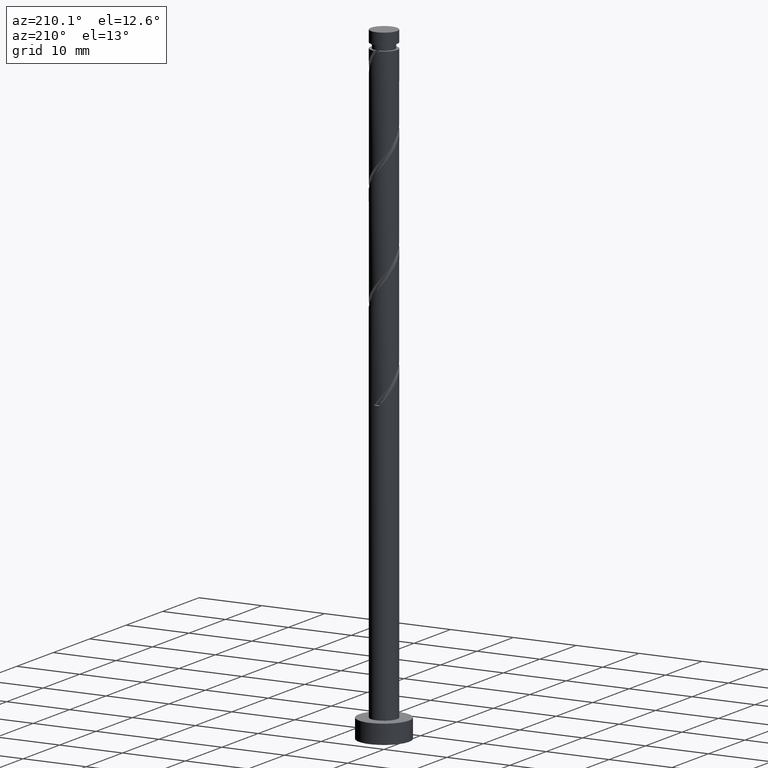
[diagram: clean part render]
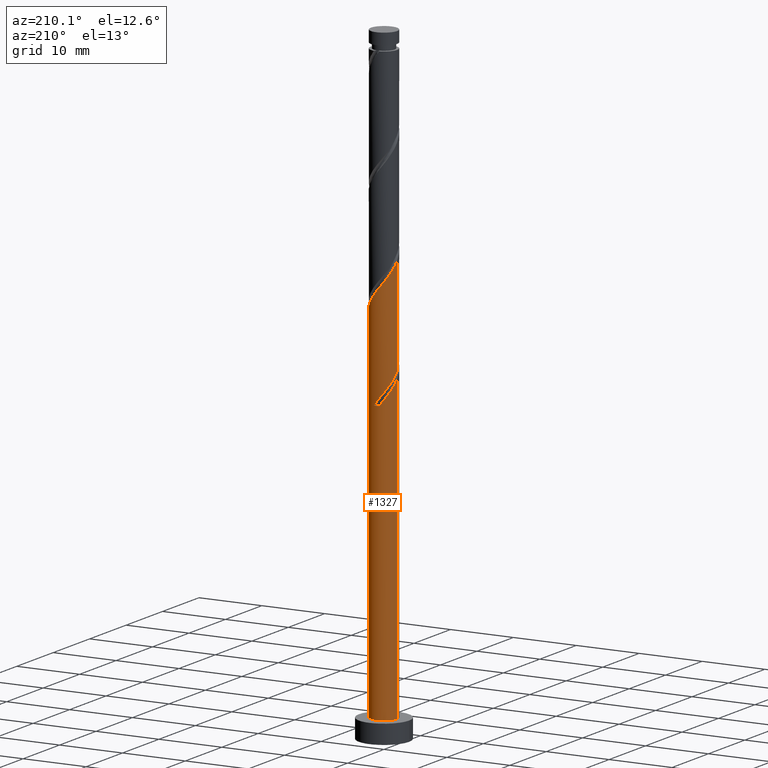
[diagram: same view with one face highlighted and labeled with its STEP entity id]
A machine part, auxiliary view. The second image highlights one B-rep face of the part: STEP entity #1327.
In plain terms, the highlighted cylindrical surface (edge-blend (fillet) strip) has radius 2.1 mm, axis along (-0, -0, -1).
Its self-contained STEP definition (entity closure, byte-faithful):
#27 = VERTEX_POINT ( 'NONE', #1193 ) ;
#32 = EDGE_CURVE ( 'NONE', #27, #558, #1017, .T. ) ;
#37 = VERTEX_POINT ( 'NONE', #1134 ) ;
#42 = AXIS2_PLACEMENT_3D ( 'NONE', #1086, #1323, #1357 ) ;
#43 = CARTESIAN_POINT ( 'NONE',  ( -1.096570042982212945, 1.790959000321894701, 48.26513319744002217 ) ) ;
#44 = CARTESIAN_POINT ( 'NONE',  ( -1.818587429723140136, 1.113486403440832717, 50.57994801225483883 ) ) ;
#56 = CARTESIAN_POINT ( 'NONE',  ( 1.328078408668831534, 1.668328490022961130, 61.69105912336593178 ) ) ;
#74 = CARTESIAN_POINT ( 'NONE',  ( -1.412364436081622765, 1.597604115507490041, 48.72809616040300540 ) ) ;
#83 = CARTESIAN_POINT ( 'NONE',  ( -1.096570042982212945, 1.790959000321894701, 64.93179986410669358 ) ) ;
#111 = CARTESIAN_POINT ( 'NONE',  ( 0.000000000000000000, 0.000000000000000000, 100.0000000000000000 ) ) ;
#112 = CARTESIAN_POINT ( 'NONE',  ( 2.100000000000000089, 2.571758278209441464E-16, 3.000000000000000000 ) ) ;
#113 = CARTESIAN_POINT ( 'NONE',  ( -0.7807756498828021252, 1.984313885136300248, 64.46883690114373167 ) ) ;
#115 = AXIS2_PLACEMENT_3D ( 'NONE', #111, #577, #145 ) ;
#118 = ORIENTED_EDGE ( 'NONE', *, *, #430, .F. ) ;
#145 = DIRECTION ( 'NONE',  ( -1.000000000000000000, 0.000000000000000000, 0.000000000000000000 ) ) ;
#162 = CARTESIAN_POINT ( 'NONE',  ( -0.7807756498828021252, 1.984313885136300248, 47.80217023447706026 ) ) ;
#171 = CARTESIAN_POINT ( 'NONE',  ( -1.573332919195984614, 1.390907446731896036, 50.11698504929187692 ) ) ;
#176 = CARTESIAN_POINT ( 'NONE',  ( -1.873601227009902059, 1.018199711422872467, 49.65402208632891501 ) ) ;
#178 = EDGE_LOOP ( 'NONE', ( #1052, #1243, #1413, #532, #1030, #1184, #1483, #118 ) ) ;
#201 = CARTESIAN_POINT ( 'NONE',  ( -0.4178947235847802477, 2.058000000000002938, 64.00587393818075554 ) ) ;
#253 = VERTEX_POINT ( 'NONE', #956 ) ;
#261 = VERTEX_POINT ( 'NONE', #941 ) ;
#281 = CIRCLE ( 'NONE', #743, 2.100000000000000089 ) ;
#285 = CARTESIAN_POINT ( 'NONE',  ( -2.100000000000002753, 0.3424141808229606565, 50.54509953749303008 ) ) ;
#286 = CARTESIAN_POINT ( 'NONE',  ( -1.002730969924035209, 1.845137014412534748, 49.19105912336595310 ) ) ;
#302 = CARTESIAN_POINT ( 'NONE',  ( -0.3111848669462412009, 2.076815826832907330, 48.26513319744002217 ) ) ;
#318 = DIRECTION ( 'NONE',  ( -0.000000000000000000, -0.000000000000000000, -1.000000000000000000 ) ) ;
#327 = LINE ( 'NONE', #554, #1320 ) ;
#336 = CARTESIAN_POINT ( 'NONE',  ( 0.000000000000000000, 0.000000000000000000, 3.000000000000000000 ) ) ;
#359 = VECTOR ( 'NONE', #768, 1000.000000000000000 ) ;
#365 =( BOUNDED_CURVE ( )  B_SPLINE_CURVE ( 2, ( #1100, #162, #43, #74, #523, #176, #1203, #285, #533 ),
 .UNSPECIFIED., .F., .T. ) 
 B_SPLINE_CURVE_WITH_KNOTS ( ( 3, 2, 2, 2, 3 ),
 ( 0.000000000000000000, 0.01388888888888883955, 0.02777777777777779011, 0.04166666666666662966, 0.05452480538552904182 ),
 .UNSPECIFIED. ) 
 CURVE ( )  GEOMETRIC_REPRESENTATION_ITEM ( )  RATIONAL_B_SPLINE_CURVE ( ( 0.9090909090909148338, 0.8952797754656494078, 0.9090909090909148338, 0.8952797754656494078, 0.9090909090909148338, 0.8952797754656494078, 0.9090909090909148338, 0.8963047551055894901, 0.9071930855141270289 ) ) 
 REPRESENTATION_ITEM ( '' )  );
#372 = CARTESIAN_POINT ( 'NONE',  ( 1.573332919195986834, 1.390907446731897590, 61.22809616040297698 ) ) ;
#407 = CARTESIAN_POINT ( 'NONE',  ( -0.6773835311792417713, 2.021945538802111031, 48.72809616040299119 ) ) ;
#410 = EDGE_CURVE ( 'NONE', #37, #261, #365, .T. ) ;
#419 = CARTESIAN_POINT ( 'NONE',  ( 2.099301012906249042, 0.05417801409064245538, 59.37624430855113644 ) ) ;
#430 = EDGE_CURVE ( 'NONE', #558, #253, #1079, .T. ) ;
#505 = CARTESIAN_POINT ( 'NONE',  ( 1.954167698492004890, 0.7689139133677279636, 60.30217023447708158 ) ) ;
#523 = CARTESIAN_POINT ( 'NONE',  ( -1.642982831545762190, 1.307901913465180810, 49.19105912336594599 ) ) ;
#532 = ORIENTED_EDGE ( 'NONE', *, *, #817, .F. ) ;
#533 = CARTESIAN_POINT ( 'NONE',  ( -2.100000000000002309, 1.583530453970730612E-15, 50.97501904985868038 ) ) ;
#554 = CARTESIAN_POINT ( 'NONE',  ( 2.100000000000000089, 2.571758278209441464E-16, 100.0000000000000000 ) ) ;
#558 = VERTEX_POINT ( 'NONE', #1267 ) ;
#564 = EDGE_CURVE ( 'NONE', #582, #1235, #281, .T. ) ;
#565 = CARTESIAN_POINT ( 'NONE',  ( -1.412364436081622765, 1.597604115507490041, 65.39476282706965549 ) ) ;
#577 = DIRECTION ( 'NONE',  ( -0.000000000000000000, -0.000000000000000000, -1.000000000000000000 ) ) ;
#582 = VERTEX_POINT ( 'NONE', #112 ) ;
#598 = CARTESIAN_POINT ( 'NONE',  ( 2.100000000000002753, 0.02709351609724555340, 59.34236975712436646 ) ) ;
#625 = VECTOR ( 'NONE', #1195, 1000.000000000000000 ) ;
#640 = CARTESIAN_POINT ( 'NONE',  ( -2.099301012906246378, 0.05417801409064274681, 51.96883690114371745 ) ) ;
#657 = CARTESIAN_POINT ( 'NONE',  ( 0.05501379728675943881, 2.131686114863702741, 47.80217023447706737 ) ) ;
#683 = CARTESIAN_POINT ( 'NONE',  ( -2.100000000000001421, 0.3424141808229657635, 67.21176620415972991 ) ) ;
#698 = FACE_OUTER_BOUND ( 'NONE', #178, .T. ) ;
#706 = CIRCLE ( 'NONE', #42, 2.100000000000000089 ) ;
#717 = CARTESIAN_POINT ( 'NONE',  ( 2.100000000000002309, -1.609673645427794258E-15, 59.30835238319201608 ) ) ;
#724 = EDGE_CURVE ( 'NONE', #253, #1065, #971, .T. ) ;
#743 = AXIS2_PLACEMENT_3D ( 'NONE', #336, #1140, #799 ) ;
#763 = CARTESIAN_POINT ( 'NONE',  ( 2.089747967260866535, 0.4243414232946234876, 59.83920727151409835 ) ) ;
#768 = DIRECTION ( 'NONE',  ( -0.000000000000000000, -0.000000000000000000, -1.000000000000000000 ) ) ;
#792 = CARTESIAN_POINT ( 'NONE',  ( 0.3111848669462436434, 2.076815826832909551, 63.07994801225481751 ) ) ;
#798 = CARTESIAN_POINT ( 'NONE',  ( 0.4178947235847809694, 2.058000000000000274, 47.33920727151409835 ) ) ;
#799 = DIRECTION ( 'NONE',  ( 1.000000000000000000, 0.000000000000000000, 0.000000000000000000 ) ) ;
#809 = CARTESIAN_POINT ( 'NONE',  ( -1.642982831545762190, 1.307901913465180810, 65.85772579003260319 ) ) ;
#817 = EDGE_CURVE ( 'NONE', #261, #1235, #875, .T. ) ;
#852 = CARTESIAN_POINT ( 'NONE',  ( 1.818587429723142801, 1.113486403440832717, 60.76513319744001507 ) ) ;
#875 = LINE ( 'NONE', #977, #359 ) ;
#900 = CARTESIAN_POINT ( 'NONE',  ( 0.6773835311792442138, 2.021945538802112363, 62.61698504929187692 ) ) ;
#910 = EDGE_CURVE ( 'NONE', #37, #1065, #706, .T. ) ;
#924 = CARTESIAN_POINT ( 'NONE',  ( -1.991227642780767360, 0.6670925532681057923, 66.78365171595852701 ) ) ;
#941 = CARTESIAN_POINT ( 'NONE',  ( -2.100000000000002309, 1.583530453970730612E-15, 50.97501904985868038 ) ) ;
#956 = CARTESIAN_POINT ( 'NONE',  ( -2.100000000000000089, -1.053197141556011725E-15, 52.03672882650285914 ) ) ;
#958 = CARTESIAN_POINT ( 'NONE',  ( -2.100000000000000089, 0.000000000000000000, 3.000000000000000000 ) ) ;
#971 =( BOUNDED_CURVE ( )  B_SPLINE_CURVE ( 2, ( #1315, #1449, #640, #1211, #1111, #44, #171, #1441, #286, #407, #302, #657, #1094 ),
 .UNSPECIFIED., .F., .T. ) 
 B_SPLINE_CURVE_WITH_KNOTS ( ( 3, 2, 2, 2, 2, 2, 3 ),
 ( 0.9295248053855289516, 0.9305555555555555802, 0.9444444444444444198, 0.9583333333333333703, 0.9722222222222222099, 0.9861111111111111605, 1.000000000000000000 ),
 .UNSPECIFIED. ) 
 CURVE ( )  GEOMETRIC_REPRESENTATION_ITEM ( )  RATIONAL_B_SPLINE_CURVE ( ( 0.9071930855141209227, 0.9080659294509686452, 0.9090909090909088386, 0.8952797754656434126, 0.9090909090909088386, 0.8952797754656434126, 0.9090909090909088386, 0.8952797754656434126, 0.9090909090909088386, 0.8952797754656434126, 0.9090909090909088386, 0.8952797754656434126, 0.9090909090909088386 ) ) 
 REPRESENTATION_ITEM ( '' )  );
#977 = CARTESIAN_POINT ( 'NONE',  ( -2.100000000000000089, 0.000000000000000000, 100.0000000000000000 ) ) ;
#1012 = EDGE_CURVE ( 'NONE', #27, #582, #327, .T. ) ;
#1017 =( BOUNDED_CURVE ( )  B_SPLINE_CURVE ( 2, ( #717, #598, #419, #763, #505, #852, #372, #56, #1468, #900, #792, #1359, #201, #113, #83, #565, #809, #1021, #924, #683, #1479 ),
 .UNSPECIFIED., .F., .T. ) 
 B_SPLINE_CURVE_WITH_KNOTS ( ( 3, 2, 2, 2, 2, 2, 2, 2, 2, 2, 3 ),
 ( 0.1795248053855291459, 0.1805555555555555802, 0.1944444444444444198, 0.2083333333333333703, 0.2222222222222222099, 0.2361111111111111605, 0.2500000000000000000, 0.2638888888888888395, 0.2777777777777777901, 0.2916666666666666297, 0.3045248053855288406 ),
 .UNSPECIFIED. ) 
 CURVE ( )  GEOMETRIC_REPRESENTATION_ITEM ( )  RATIONAL_B_SPLINE_CURVE ( ( 0.9071930855141271399, 0.9080659294509747514, 0.9090909090909148338, 0.8952797754656494078, 0.9090909090909148338, 0.8952797754656494078, 0.9090909090909148338, 0.8952797754656494078, 0.9090909090909148338, 0.8952797754656494078, 0.9090909090909148338, 0.8952797754656494078, 0.9090909090909148338, 0.8952797754656494078, 0.9090909090909148338, 0.8952797754656494078, 0.9090909090909148338, 0.8952797754656494078, 0.9090909090909148338, 0.8963047551055897122, 0.9071930855141268069 ) ) 
 REPRESENTATION_ITEM ( '' )  );
#1021 = CARTESIAN_POINT ( 'NONE',  ( -1.873601227009902059, 1.018199711422872467, 66.32068875299557931 ) ) ;
#1030 = ORIENTED_EDGE ( 'NONE', *, *, #410, .F. ) ;
#1052 = ORIENTED_EDGE ( 'NONE', *, *, #32, .F. ) ;
#1065 = VERTEX_POINT ( 'NONE', #798 ) ;
#1079 = LINE ( 'NONE', #1433, #625 ) ;
#1086 = CARTESIAN_POINT ( 'NONE',  ( 0.000000000000000000, 0.000000000000000000, 47.33920727151415520 ) ) ;
#1094 = CARTESIAN_POINT ( 'NONE',  ( 0.4178947235847810249, 2.058000000000000274, 47.33920727151409835 ) ) ;
#1100 = CARTESIAN_POINT ( 'NONE',  ( -0.4178947235847801922, 2.058000000000002938, 47.33920727151409835 ) ) ;
#1111 = CARTESIAN_POINT ( 'NONE',  ( -1.954167698492001781, 0.7689139133677279636, 51.04291097521780074 ) ) ;
#1134 = CARTESIAN_POINT ( 'NONE',  ( -0.4178947235847801922, 2.058000000000002938, 47.33920727151409835 ) ) ;
#1140 = DIRECTION ( 'NONE',  ( 0.000000000000000000, 0.000000000000000000, 1.000000000000000000 ) ) ;
#1147 = CYLINDRICAL_SURFACE ( 'NONE', #115, 2.100000000000000089 ) ;
#1184 = ORIENTED_EDGE ( 'NONE', *, *, #910, .T. ) ;
#1193 = CARTESIAN_POINT ( 'NONE',  ( 2.100000000000002309, -1.609673645427794455E-15, 59.30835238319201608 ) ) ;
#1195 = DIRECTION ( 'NONE',  ( -0.000000000000000000, -0.000000000000000000, -1.000000000000000000 ) ) ;
#1203 = CARTESIAN_POINT ( 'NONE',  ( -1.991227642780767360, 0.6670925532681057923, 50.11698504929187692 ) ) ;
#1211 = CARTESIAN_POINT ( 'NONE',  ( -2.089747967260863870, 0.4243414232946237097, 51.50587393818076265 ) ) ;
#1235 = VERTEX_POINT ( 'NONE', #958 ) ;
#1243 = ORIENTED_EDGE ( 'NONE', *, *, #1012, .T. ) ;
#1267 = CARTESIAN_POINT ( 'NONE',  ( -2.100000000000002309, 1.583530453970730612E-15, 67.64168571652533046 ) ) ;
#1315 = CARTESIAN_POINT ( 'NONE',  ( -2.100000000000000089, -1.053197141556011922E-15, 52.03672882650285203 ) ) ;
#1320 = VECTOR ( 'NONE', #318, 1000.000000000000000 ) ;
#1323 = DIRECTION ( 'NONE',  ( 0.000000000000000000, -2.478176394252581654E-14, -1.000000000000000000 ) ) ;
#1327 = ADVANCED_FACE ( 'NONE', ( #698 ), #1147, .T. ) ;
#1357 = DIRECTION ( 'NONE',  ( 0.000000000000000000, 1.000000000000000000, -2.643388153869420094E-14 ) ) ;
#1359 = CARTESIAN_POINT ( 'NONE',  ( -0.05501379728675910574, 2.131686114863705406, 63.54291097521778653 ) ) ;
#1413 = ORIENTED_EDGE ( 'NONE', *, *, #564, .T. ) ;
#1433 = CARTESIAN_POINT ( 'NONE',  ( -2.100000000000000089, 0.000000000000000000, 100.0000000000000000 ) ) ;
#1441 = CARTESIAN_POINT ( 'NONE',  ( -1.328078408668829313, 1.668328490022959354, 49.65402208632892211 ) ) ;
#1449 = CARTESIAN_POINT ( 'NONE',  ( -2.099999999999999645, 0.02709351609724086965, 52.00271145257048744 ) ) ;
#1468 = CARTESIAN_POINT ( 'NONE',  ( 1.002730969924038096, 1.845137014412537191, 62.15402208632892211 ) ) ;
#1479 = CARTESIAN_POINT ( 'NONE',  ( -2.100000000000002309, 1.583530453970730612E-15, 67.64168571652533046 ) ) ;
#1483 = ORIENTED_EDGE ( 'NONE', *, *, #724, .F. ) ;